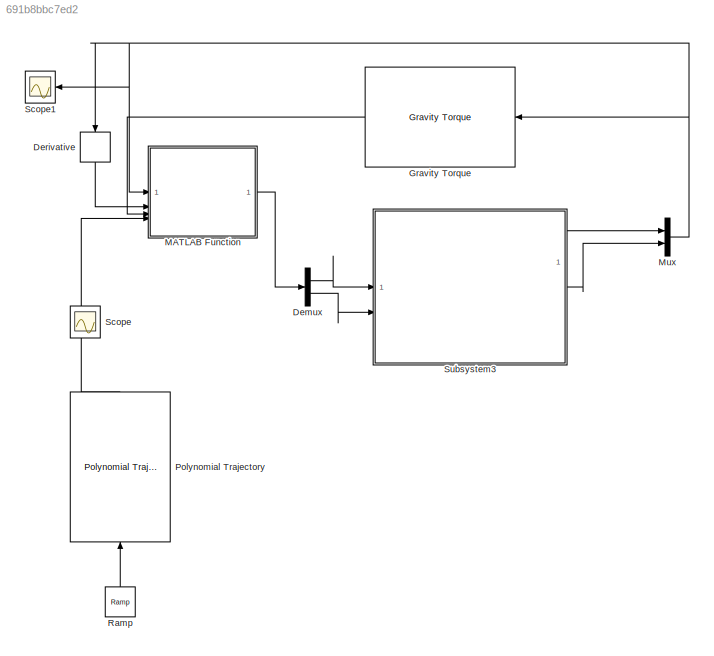
MODEL slx_691b8bbc7ed2
KIND model
CONFIG AbsTol = auto
CONFIG EnableMultiTasking = off
CONFIG FixedStep = auto
CONFIG MaxStep = auto
CONFIG MinStep = auto
CONFIG RelTol = 1e-3
CONFIG SampleTimeConstraint = Unconstrained
CONFIG SolverName = VariableStepAuto
CONFIG StartTime = 0.0
CONFIG StopTime = 10
BLOCK [Demux] Demux
  Outputs = 2
BLOCK [Derivative] Derivative
  NameLocation = left
BLOCK [Reference] Gravity Torque  REF=robotmaniplib/Gravity Torque
  NameLocation = top
  SourceBlock = robotmaniplib/Gravity Torque
  SourceType = Gravity Torque
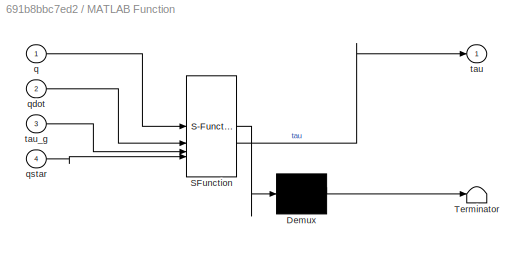
BLOCK [SubSystem] MATLAB Function
  ErrorFcn = Stateflow.Translate.translate
  LibrarySourceBlock = simulink/User-Defined\nFunctions/MATLAB Function
  PermitHierarchicalResolution = ExplicitOnly
  SFBlockType = MATLAB Function
  TreatAsAtomicUnit = on
BLOCK [Demux] MATLAB Function/ Demux 
  Outputs = 1
BLOCK [S-Function] MATLAB Function/ SFunction 
  EnableBusSupport = on
  FunctionName = sf_sfun
  PortCounts = [4 2]
  SFcnIsStateOwnerBlock = off
  SFunctionDeploymentMode = off
  Tag = Stateflow S-Function 2
BLOCK [Terminator] MATLAB Function/ Terminator 
BLOCK [Inport] MATLAB Function/q
BLOCK [Inport] MATLAB Function/qdot
  Port = 2
BLOCK [Inport] MATLAB Function/qstar
  Port = 4
BLOCK [Outport] MATLAB Function/tau
BLOCK [Inport] MATLAB Function/tau_g
  Port = 3
BLOCK [Mux] Mux
  DisplayOption = bar
  Inputs = 2
BLOCK [Reference] Polynomial Trajectory  REF=robotcorelib/Polynomial Trajectory
  LibrarySourceBlock = robotutilslib/Polynomial Trajectory
  NameLocation = right
  SourceBlock = robotcorelib/Polynomial Trajectory
  SourceType = robotics.slcore.internal.block.PolyTrajSys
BLOCK [Reference] Ramp  REF=simulink/Sources/Ramp
  NameLocation = right
  SourceBlock = simulink/Sources/Ramp
  SourceType = Ramp
BLOCK [Scope] Scope
  Floating = off
  NumInputPorts = 1
  ScopeSpecificationString = Simulink.scopes.TimeScopeBlockCfg('CurrentConfiguration', extmgr.ConfigurationSet(extmgr.Configuration('Core','General UI',true),extmgr.Configuration('Core','Source UI',true),extmgr.Configuration('Sources','WiredSimulink',true),extmgr.Configuration('Visuals','Time Domain',true,'SerializedDisplays',{struct('MinYLimReal','-0.19635','MaxYLimReal','1.76715','YLabelReal','','MinYLimMag','0.00000','MaxY...<+1406ch>
BLOCK [Scope] Scope1
  Floating = off
  NameLocation = top
  NumInputPorts = 1
  ScopeSpecificationString = Simulink.scopes.TimeScopeBlockCfg('CurrentConfiguration', extmgr.ConfigurationSet(extmgr.Configuration('Core','General UI',true),extmgr.Configuration('Core','Source UI',true),extmgr.Configuration('Sources','WiredSimulink',true,'DataLoggingVariableName','ScopeData1'),extmgr.Configuration('Visuals','Time Domain',true,'SerializedDisplays',{struct('MinYLimReal','-0.19646','MaxYLimReal','1.76718','YLab...<+1413ch>
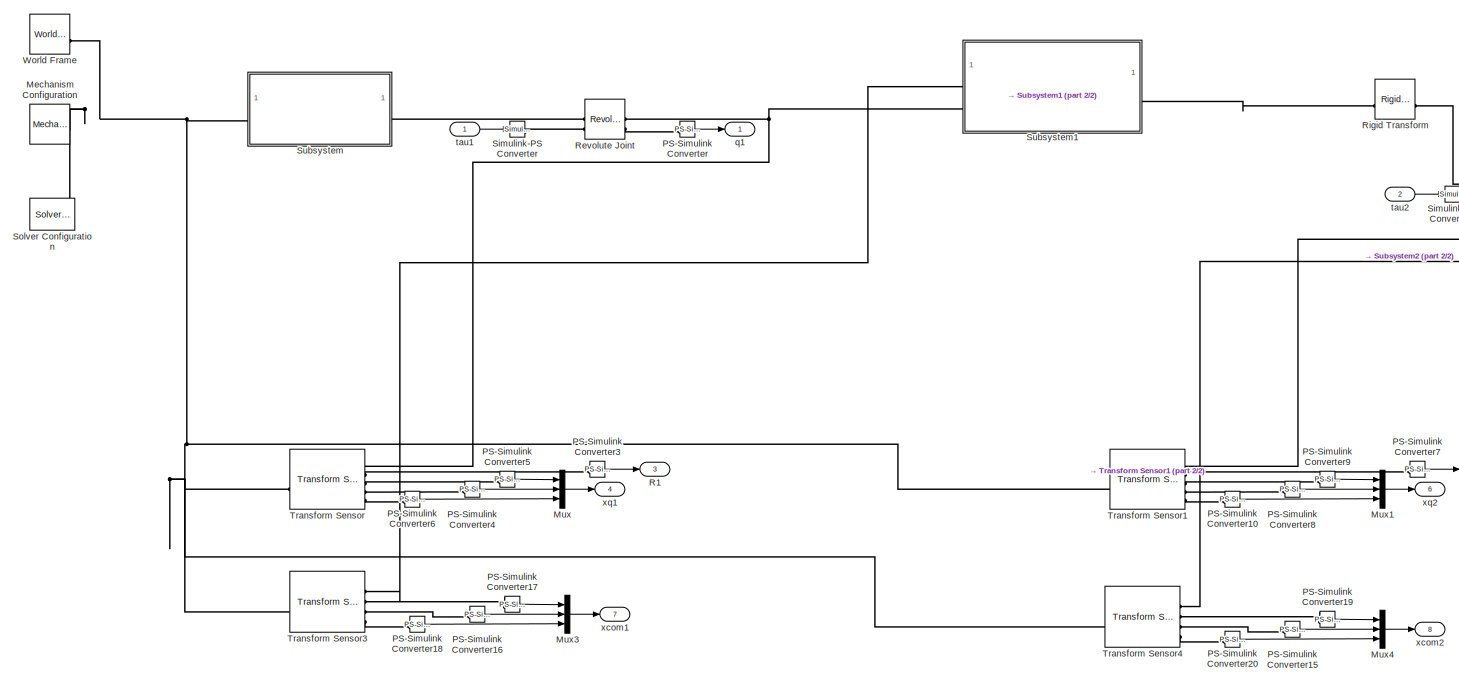
[diagram: Subsystem3 - part 1/2, center side, full height]
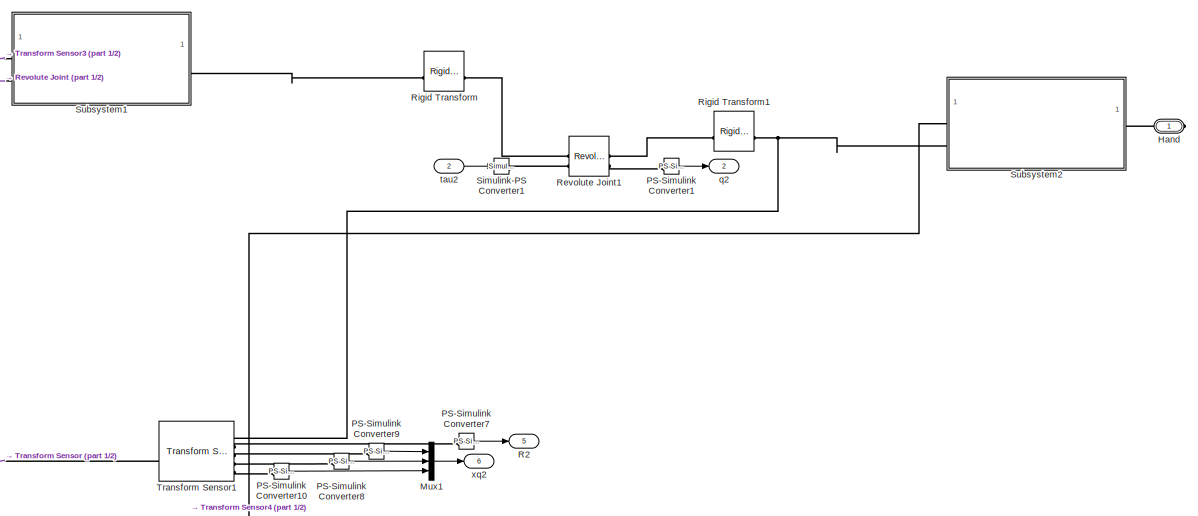
[diagram: Subsystem3 - part 2/2, middle right region]
BLOCK [SubSystem] Subsystem3
BLOCK [PMIOPort] Subsystem3/Hand
  Side = Right
BLOCK [Reference] Subsystem3/Mechanism Configuration  REF=sm_lib/Utilities/Mechanism
Configuration
  SourceBlock = sm_lib/Utilities/Mechanism\nConfiguration
  SourceType = Mechanism\nConfiguration
BLOCK [Mux] Subsystem3/Mux
  DisplayOption = bar
  Inputs = 3
BLOCK [Mux] Subsystem3/Mux1
  DisplayOption = bar
  Inputs = 3
BLOCK [Mux] Subsystem3/Mux3
  DisplayOption = bar
  Inputs = 3
BLOCK [Mux] Subsystem3/Mux4
  DisplayOption = bar
  Inputs = 3
BLOCK [Reference] Subsystem3/PS-Simulink Converter  REF=nesl_utility/PS-Simulink
Converter
  SourceBlock = nesl_utility/PS-Simulink\nConverter
  SourceType = PS-Simulink\nConverter
BLOCK [Reference] Subsystem3/PS-Simulink Converter1  REF=nesl_utility/PS-Simulink
Converter
  SourceBlock = nesl_utility/PS-Simulink\nConverter
  SourceType = PS-Simulink\nConverter
BLOCK [Reference] Subsystem3/PS-Simulink Converter10  REF=nesl_utility/PS-Simulink
Converter
  SourceBlock = nesl_utility/PS-Simulink\nConverter
  SourceType = PS-Simulink\nConverter
BLOCK [Reference] Subsystem3/PS-Simulink Converter15  REF=nesl_utility/PS-Simulink
Converter
  SourceBlock = nesl_utility/PS-Simulink\nConverter
  SourceType = PS-Simulink\nConverter
BLOCK [Reference] Subsystem3/PS-Simulink Converter16  REF=nesl_utility/PS-Simulink
Converter
  SourceBlock = nesl_utility/PS-Simulink\nConverter
  SourceType = PS-Simulink\nConverter
BLOCK [Reference] Subsystem3/PS-Simulink Converter17  REF=nesl_utility/PS-Simulink
Converter
  SourceBlock = nesl_utility/PS-Simulink\nConverter
  SourceType = PS-Simulink\nConverter
BLOCK [Reference] Subsystem3/PS-Simulink Converter18  REF=nesl_utility/PS-Simulink
Converter
  SourceBlock = nesl_utility/PS-Simulink\nConverter
  SourceType = PS-Simulink\nConverter
BLOCK [Reference] Subsystem3/PS-Simulink Converter19  REF=nesl_utility/PS-Simulink
Converter
  SourceBlock = nesl_utility/PS-Simulink\nConverter
  SourceType = PS-Simulink\nConverter
BLOCK [Reference] Subsystem3/PS-Simulink Converter20  REF=nesl_utility/PS-Simulink
Converter
  SourceBlock = nesl_utility/PS-Simulink\nConverter
  SourceType = PS-Simulink\nConverter
BLOCK [Reference] Subsystem3/PS-Simulink Converter3  REF=nesl_utility/PS-Simulink
Converter
  SourceBlock = nesl_utility/PS-Simulink\nConverter
  SourceType = PS-Simulink\nConverter
BLOCK [Reference] Subsystem3/PS-Simulink Converter4  REF=nesl_utility/PS-Simulink
Converter
  SourceBlock = nesl_utility/PS-Simulink\nConverter
  SourceType = PS-Simulink\nConverter
BLOCK [Reference] Subsystem3/PS-Simulink Converter5  REF=nesl_utility/PS-Simulink
Converter
  SourceBlock = nesl_utility/PS-Simulink\nConverter
  SourceType = PS-Simulink\nConverter
BLOCK [Reference] Subsystem3/PS-Simulink Converter6  REF=nesl_utility/PS-Simulink
Converter
  SourceBlock = nesl_utility/PS-Simulink\nConverter
  SourceType = PS-Simulink\nConverter
BLOCK [Reference] Subsystem3/PS-Simulink Converter7  REF=nesl_utility/PS-Simulink
Converter
  SourceBlock = nesl_utility/PS-Simulink\nConverter
  SourceType = PS-Simulink\nConverter
BLOCK [Reference] Subsystem3/PS-Simulink Converter8  REF=nesl_utility/PS-Simulink
Converter
  SourceBlock = nesl_utility/PS-Simulink\nConverter
  SourceType = PS-Simulink\nConverter
BLOCK [Reference] Subsystem3/PS-Simulink Converter9  REF=nesl_utility/PS-Simulink
Converter
  SourceBlock = nesl_utility/PS-Simulink\nConverter
  SourceType = PS-Simulink\nConverter
BLOCK [Outport] Subsystem3/R1
  Port = 3
BLOCK [Outport] Subsystem3/R2
  Port = 5
BLOCK [Reference] Subsystem3/Revolute Joint  REF=sm_lib/Joints/Revolute Joint
  SourceBlock = sm_lib/Joints/Revolute Joint
  SourceType = Revolute Joint
BLOCK [Reference] Subsystem3/Revolute Joint1  REF=sm_lib/Joints/Revolute Joint
  SourceBlock = sm_lib/Joints/Revolute Joint
  SourceType = Revolute Joint
BLOCK [Reference] Subsystem3/Rigid Transform  REF=sm_lib/Frames and
Transforms/Rigid
Transform
  SourceBlock = sm_lib/Frames and\nTransforms/Rigid\nTransform
  SourceType = Rigid\nTransform
BLOCK [Reference] Subsystem3/Rigid Transform1  REF=sm_lib/Frames and
Transforms/Rigid
Transform
  SourceBlock = sm_lib/Frames and\nTransforms/Rigid\nTransform
  SourceType = Rigid\nTransform
BLOCK [Reference] Subsystem3/Simulink-PS Converter  REF=nesl_utility/Simulink-PS
Converter
  SourceBlock = nesl_utility/Simulink-PS\nConverter
  SourceType = Simulink-PS\nConverter
BLOCK [Reference] Subsystem3/Simulink-PS Converter1  REF=nesl_utility/Simulink-PS
Converter
  SourceBlock = nesl_utility/Simulink-PS\nConverter
  SourceType = Simulink-PS\nConverter
BLOCK [Reference] Subsystem3/Solver Configuration  REF=nesl_utility/Solver
Configuration
  SourceBlock = nesl_utility/Solver\nConfiguration
  SourceType = Solver\nConfiguration
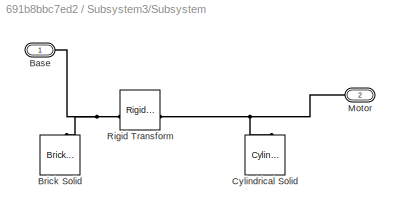
BLOCK [SubSystem] Subsystem3/Subsystem
BLOCK [PMIOPort] Subsystem3/Subsystem/Base
  Side = Left
BLOCK [Reference] Subsystem3/Subsystem/Brick Solid  REF=sm_lib/Body Elements/Brick Solid
  NameLocation = right
  SourceBlock = sm_lib/Body Elements/Brick Solid
  SourceType = Brick Solid
BLOCK [Reference] Subsystem3/Subsystem/Cylindrical Solid  REF=sm_lib/Body Elements/Cylindrical Solid
  NameLocation = right
  SourceBlock = sm_lib/Body Elements/Cylindrical Solid
  SourceType = Cylindrical Solid
BLOCK [PMIOPort] Subsystem3/Subsystem/Motor
  NameLocation = top
  Port = 2
  Side = Right
BLOCK [Reference] Subsystem3/Subsystem/Rigid Transform  REF=sm_lib/Frames and
Transforms/Rigid
Transform
  SourceBlock = sm_lib/Frames and\nTransforms/Rigid\nTransform
  SourceType = Rigid\nTransform
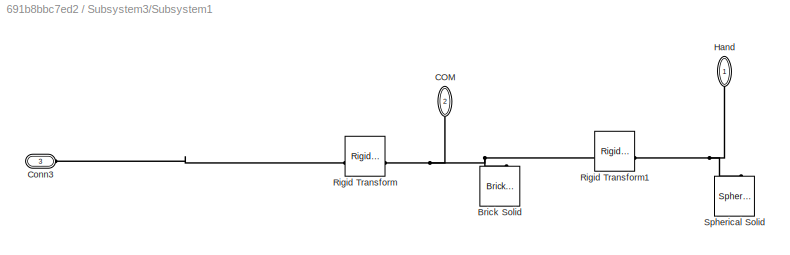
BLOCK [SubSystem] Subsystem3/Subsystem1
BLOCK [Reference] Subsystem3/Subsystem1/Brick Solid  REF=sm_lib/Body Elements/Brick Solid
  NameLocation = right
  SourceBlock = sm_lib/Body Elements/Brick Solid
  SourceType = Brick Solid
BLOCK [PMIOPort] Subsystem3/Subsystem1/COM
  NameLocation = left
  Port = 2
  Side = Left
BLOCK [PMIOPort] Subsystem3/Subsystem1/Conn3
  Port = 3
  Side = Left
BLOCK [PMIOPort] Subsystem3/Subsystem1/Hand
  NameLocation = left
  Side = Right
BLOCK [Reference] Subsystem3/Subsystem1/Rigid Transform  REF=sm_lib/Frames and
Transforms/Rigid
Transform
  SourceBlock = sm_lib/Frames and\nTransforms/Rigid\nTransform
  SourceType = Rigid\nTransform
BLOCK [Reference] Subsystem3/Subsystem1/Rigid Transform1  REF=sm_lib/Frames and
Transforms/Rigid
Transform
  SourceBlock = sm_lib/Frames and\nTransforms/Rigid\nTransform
  SourceType = Rigid\nTransform
BLOCK [Reference] Subsystem3/Subsystem1/Spherical Solid  REF=sm_lib/Body Elements/Spherical Solid
  NameLocation = right
  SourceBlock = sm_lib/Body Elements/Spherical Solid
  SourceType = Spherical Solid
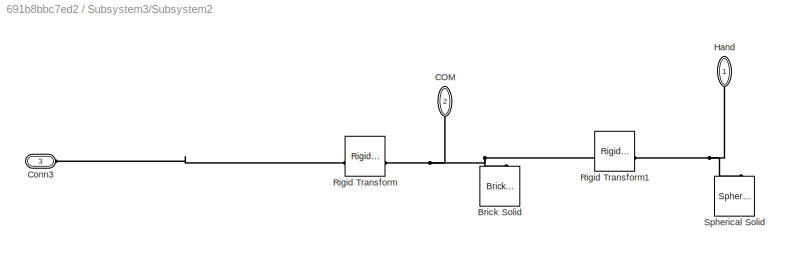
BLOCK [SubSystem] Subsystem3/Subsystem2
BLOCK [Reference] Subsystem3/Subsystem2/Brick Solid  REF=sm_lib/Body Elements/Brick Solid
  NameLocation = right
  SourceBlock = sm_lib/Body Elements/Brick Solid
  SourceType = Brick Solid
BLOCK [PMIOPort] Subsystem3/Subsystem2/COM
  NameLocation = left
  Port = 2
  Side = Left
BLOCK [PMIOPort] Subsystem3/Subsystem2/Conn3
  Port = 3
  Side = Left
BLOCK [PMIOPort] Subsystem3/Subsystem2/Hand
  NameLocation = left
  Side = Right
BLOCK [Reference] Subsystem3/Subsystem2/Rigid Transform  REF=sm_lib/Frames and
Transforms/Rigid
Transform
  SourceBlock = sm_lib/Frames and\nTransforms/Rigid\nTransform
  SourceType = Rigid\nTransform
BLOCK [Reference] Subsystem3/Subsystem2/Rigid Transform1  REF=sm_lib/Frames and
Transforms/Rigid
Transform
  SourceBlock = sm_lib/Frames and\nTransforms/Rigid\nTransform
  SourceType = Rigid\nTransform
BLOCK [Reference] Subsystem3/Subsystem2/Spherical Solid  REF=sm_lib/Body Elements/Spherical Solid
  NameLocation = right
  SourceBlock = sm_lib/Body Elements/Spherical Solid
  SourceType = Spherical Solid
BLOCK [Reference] Subsystem3/Transform Sensor  REF=sm_lib/Frames and
Transforms/Transform
Sensor
  SourceBlock = sm_lib/Frames and\nTransforms/Transform\nSensor
  SourceType = Transform\nSensor
BLOCK [Reference] Subsystem3/Transform Sensor1  REF=sm_lib/Frames and
Transforms/Transform
Sensor
  SourceBlock = sm_lib/Frames and\nTransforms/Transform\nSensor
  SourceType = Transform\nSensor
BLOCK [Reference] Subsystem3/Transform Sensor3  REF=sm_lib/Frames and
Transforms/Transform
Sensor
  SourceBlock = sm_lib/Frames and\nTransforms/Transform\nSensor
  SourceType = Transform\nSensor
BLOCK [Reference] Subsystem3/Transform Sensor4  REF=sm_lib/Frames and
Transforms/Transform
Sensor
  SourceBlock = sm_lib/Frames and\nTransforms/Transform\nSensor
  SourceType = Transform\nSensor
BLOCK [Reference] Subsystem3/World Frame  REF=sm_lib/Frames and
Transforms/World Frame
  SourceBlock = sm_lib/Frames and\nTransforms/World Frame
  SourceType = World Frame
BLOCK [Outport] Subsystem3/q1
BLOCK [Outport] Subsystem3/q2
  Port = 2
BLOCK [Inport] Subsystem3/tau1
BLOCK [Inport] Subsystem3/tau2
  Port = 2
BLOCK [Outport] Subsystem3/xcom1
  Port = 7
BLOCK [Outport] Subsystem3/xcom2
  Port = 8
BLOCK [Outport] Subsystem3/xq1
  Port = 4
BLOCK [Outport] Subsystem3/xq2
  Port = 6
LINE Demux:1 -> Subsystem3:1
LINE Demux:2 -> Subsystem3:2
LINE Derivative:1 -> MATLAB Function:2
LINE Gravity Torque:1 -> MATLAB Function:3
LINE MATLAB Function:1 -> Demux:1
NET Mux:1 -> Derivative:1, Gravity Torque:1, MATLAB Function:1, Scope1:1
NET Polynomial Trajectory:1 -> MATLAB Function:4, Scope:1
LINE Ramp:1 -> Polynomial Trajectory:1
LINE Subsystem3/Mux1:1 -> Subsystem3/xq2:1
LINE Subsystem3/Mux3:1 -> Subsystem3/xcom1:1
LINE Subsystem3/Mux4:1 -> Subsystem3/xcom2:1
LINE Subsystem3/Mux:1 -> Subsystem3/xq1:1
LINE Subsystem3/PS-Simulink Converter10:1 -> Subsystem3/Mux1:3
LINE Subsystem3/PS-Simulink Converter15:1 -> Subsystem3/Mux4:2
LINE Subsystem3/PS-Simulink Converter16:1 -> Subsystem3/Mux3:2
LINE Subsystem3/PS-Simulink Converter17:1 -> Subsystem3/Mux3:1
LINE Subsystem3/PS-Simulink Converter18:1 -> Subsystem3/Mux3:3
LINE Subsystem3/PS-Simulink Converter19:1 -> Subsystem3/Mux4:1
LINE Subsystem3/PS-Simulink Converter1:1 -> Subsystem3/q2:1
LINE Subsystem3/PS-Simulink Converter20:1 -> Subsystem3/Mux4:3
LINE Subsystem3/PS-Simulink Converter3:1 -> Subsystem3/R1:1
LINE Subsystem3/PS-Simulink Converter4:1 -> Subsystem3/Mux:2
LINE Subsystem3/PS-Simulink Converter5:1 -> Subsystem3/Mux:1
LINE Subsystem3/PS-Simulink Converter6:1 -> Subsystem3/Mux:3
LINE Subsystem3/PS-Simulink Converter7:1 -> Subsystem3/R2:1
LINE Subsystem3/PS-Simulink Converter8:1 -> Subsystem3/Mux1:2
LINE Subsystem3/PS-Simulink Converter9:1 -> Subsystem3/Mux1:1
LINE Subsystem3/PS-Simulink Converter:1 -> Subsystem3/q1:1
LINE Subsystem3/tau1:1 -> Subsystem3/Simulink-PS Converter:1
LINE Subsystem3/tau2:1 -> Subsystem3/Simulink-PS Converter1:1
LINE Subsystem3:1 -> Mux:1
LINE Subsystem3:2 -> Mux:2
PLINE Subsystem3/Hand:RConn1 -- Subsystem3/Subsystem2:RConn1
PNET net1: Subsystem3/Mechanism Configuration:RConn1 -- Subsystem3/Solver Configuration:RConn1 -- Subsystem3/Subsystem:LConn1 -- Subsystem3/Transform Sensor1:LConn1 -- Subsystem3/Transform Sensor3:LConn1 -- Subsystem3/Transform Sensor4:LConn1 -- Subsystem3/Transform Sensor:LConn1 -- Subsystem3/World Frame:RConn1
PLINE Subsystem3/PS-Simulink Converter10:LConn1 -- Subsystem3/Transform Sensor1:RConn5
PLINE Subsystem3/PS-Simulink Converter15:LConn1 -- Subsystem3/Transform Sensor4:RConn3
PLINE Subsystem3/PS-Simulink Converter16:LConn1 -- Subsystem3/Transform Sensor3:RConn3
PLINE Subsystem3/PS-Simulink Converter17:LConn1 -- Subsystem3/Transform Sensor3:RConn2
PLINE Subsystem3/PS-Simulink Converter18:LConn1 -- Subsystem3/Transform Sensor3:RConn4
PLINE Subsystem3/PS-Simulink Converter19:LConn1 -- Subsystem3/Transform Sensor4:RConn2
PLINE Subsystem3/PS-Simulink Converter1:LConn1 -- Subsystem3/Revolute Joint1:RConn2
PLINE Subsystem3/PS-Simulink Converter20:LConn1 -- Subsystem3/Transform Sensor4:RConn4
PLINE Subsystem3/PS-Simulink Converter3:LConn1 -- Subsystem3/Transform Sensor:RConn2
PLINE Subsystem3/PS-Simulink Converter4:LConn1 -- Subsystem3/Transform Sensor:RConn4
PLINE Subsystem3/PS-Simulink Converter5:LConn1 -- Subsystem3/Transform Sensor:RConn3
PLINE Subsystem3/PS-Simulink Converter6:LConn1 -- Subsystem3/Transform Sensor:RConn5
PLINE Subsystem3/PS-Simulink Converter7:LConn1 -- Subsystem3/Transform Sensor1:RConn2
PLINE Subsystem3/PS-Simulink Converter8:LConn1 -- Subsystem3/Transform Sensor1:RConn4
PLINE Subsystem3/PS-Simulink Converter9:LConn1 -- Subsystem3/Transform Sensor1:RConn3
PLINE Subsystem3/PS-Simulink Converter:LConn1 -- Subsystem3/Revolute Joint:RConn2
PLINE Subsystem3/Revolute Joint1:LConn1 -- Subsystem3/Rigid Transform:RConn1
PLINE Subsystem3/Revolute Joint1:LConn2 -- Subsystem3/Simulink-PS Converter1:RConn1
PLINE Subsystem3/Revolute Joint1:RConn1 -- Subsystem3/Rigid Transform1:LConn1
PLINE Subsystem3/Revolute Joint:LConn1 -- Subsystem3/Subsystem:RConn1
PLINE Subsystem3/Revolute Joint:LConn2 -- Subsystem3/Simulink-PS Converter:RConn1
PNET net2: Subsystem3/Revolute Joint:RConn1 -- Subsystem3/Subsystem1:LConn2 -- Subsystem3/Transform Sensor:RConn1
PNET net3: Subsystem3/Rigid Transform1:RConn1 -- Subsystem3/Subsystem2:LConn2 -- Subsystem3/Transform Sensor1:RConn1
PLINE Subsystem3/Rigid Transform:LConn1 -- Subsystem3/Subsystem1:RConn1
PNET net4: Subsystem3/Subsystem/Base:RConn1 -- Subsystem3/Subsystem/Brick Solid:RConn1 -- Subsystem3/Subsystem/Rigid Transform:LConn1
PNET net5: Subsystem3/Subsystem/Cylindrical Solid:RConn1 -- Subsystem3/Subsystem/Motor:RConn1 -- Subsystem3/Subsystem/Rigid Transform:RConn1
PNET net6: Subsystem3/Subsystem1/Brick Solid:RConn1 -- Subsystem3/Subsystem1/COM:RConn1 -- Subsystem3/Subsystem1/Rigid Transform1:LConn1 -- Subsystem3/Subsystem1/Rigid Transform:RConn1
PLINE Subsystem3/Subsystem1/Conn3:RConn1 -- Subsystem3/Subsystem1/Rigid Transform:LConn1
PNET net7: Subsystem3/Subsystem1/Hand:RConn1 -- Subsystem3/Subsystem1/Rigid Transform1:RConn1 -- Subsystem3/Subsystem1/Spherical Solid:RConn1
PLINE Subsystem3/Subsystem1:LConn1 -- Subsystem3/Transform Sensor3:RConn1
PNET net8: Subsystem3/Subsystem2/Brick Solid:RConn1 -- Subsystem3/Subsystem2/COM:RConn1 -- Subsystem3/Subsystem2/Rigid Transform1:LConn1 -- Subsystem3/Subsystem2/Rigid Transform:RConn1
PLINE Subsystem3/Subsystem2/Conn3:RConn1 -- Subsystem3/Subsystem2/Rigid Transform:LConn1
PNET net9: Subsystem3/Subsystem2/Hand:RConn1 -- Subsystem3/Subsystem2/Rigid Transform1:RConn1 -- Subsystem3/Subsystem2/Spherical Solid:RConn1
PLINE Subsystem3/Subsystem2:LConn1 -- Subsystem3/Transform Sensor4:RConn1
note: NET lines group one-source signal fan-out (src -> all destinations, sorted); 1:1 wires keep LINE; PNET lines group multi-terminal physical nets as a canonical sorted terminal list (undirected conserving connections); 2-terminal nets keep the pairwise PLINE form
CHART MATLAB Function states=1 transitions=1
  STATE_LABEL 'eML_blk_kernel()'
  STATE_LABEL 'SCRIPT:\nfunction tau = fcn(q,qdot,tau_g,qstar)\n\nKp = 1000;\nKd = 1;\n\n% qstar = [0;pi/2];\ntau = Kp*(qstar-q) - Kd*qdot + tau_g\n'
CHART  states=0 transitions=0
